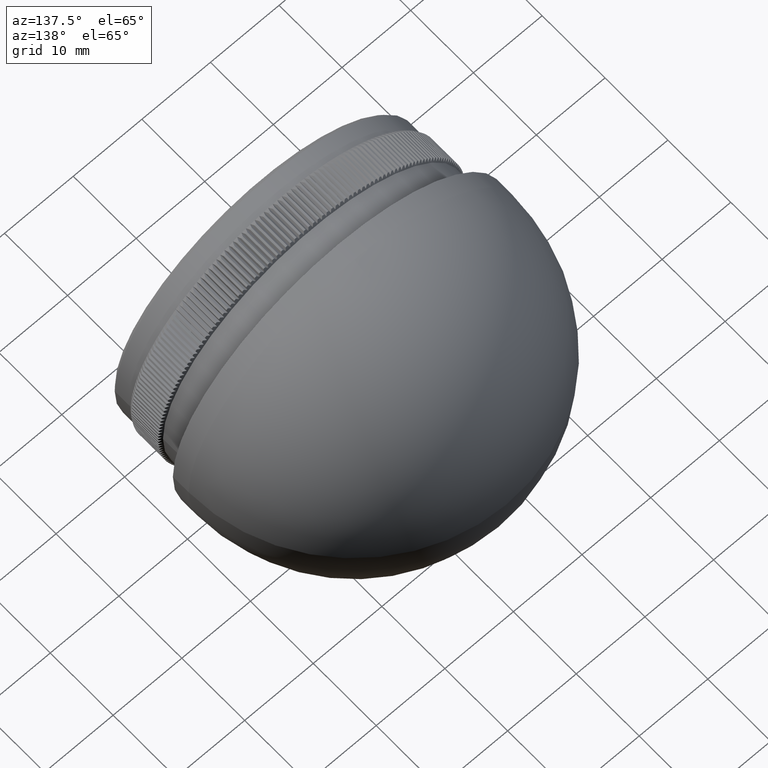
[diagram: clean part render]
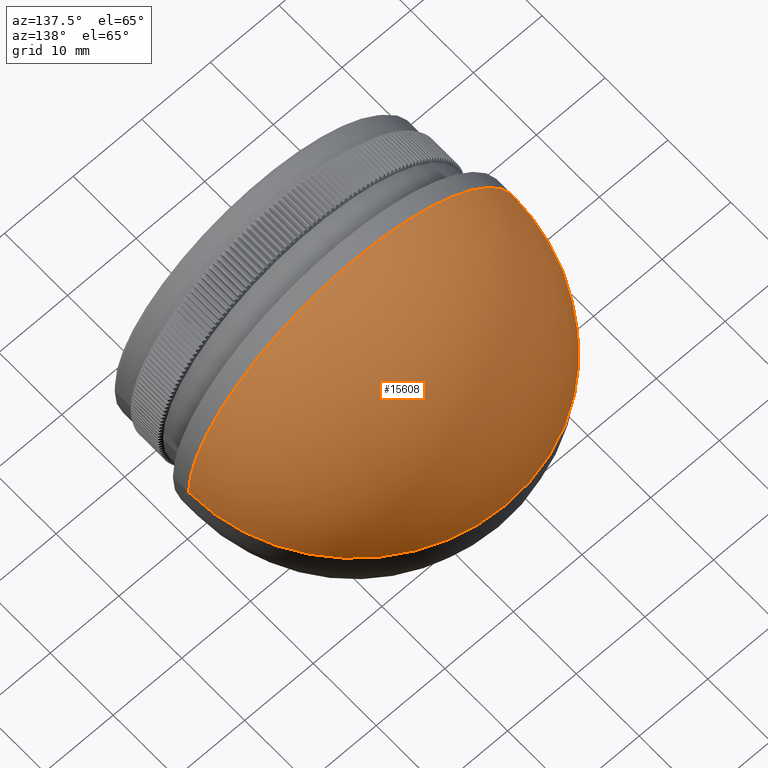
[diagram: same view with one face highlighted and labeled with its STEP entity id]
A machine part, auxiliary view. The second image highlights one B-rep face of the part: STEP entity #15608.
In plain terms, the highlighted spherical surface has radius 24.15 mm.
Its self-contained STEP definition (entity closure, byte-faithful):
#1273 = CARTESIAN_POINT ( 'NONE',  ( -1.800230794746609100E-015, 14.69999999999999900, 0.0000000000000000000 ) ) ;
#3146 = CARTESIAN_POINT ( 'NONE',  ( -2.840152988711739300E-014, 14.70000000000004000, 0.0000000000000000000 ) ) ;
#3322 = DIRECTION ( 'NONE',  ( 1.224646799147353200E-016, -1.700823602305442300E-031, 1.000000000000000000 ) ) ;
#3705 = VERTEX_POINT ( 'NONE', #29845 ) ;
#4812 = ORIENTED_EDGE ( 'NONE', *, *, #22342, .T. ) ;
#6245 = VERTEX_POINT ( 'NONE', #28163 ) ;
#6296 = DIRECTION ( 'NONE',  ( 1.000000000000000000, -1.364792796834754100E-015, 0.0000000000000000000 ) ) ;
#7072 = FACE_OUTER_BOUND ( 'NONE', #17902, .T. ) ;
#13316 = AXIS2_PLACEMENT_3D ( 'NONE', #3146, #25340, #6296 ) ;
#14000 = ORIENTED_EDGE ( 'NONE', *, *, #18165, .F. ) ;
#14968 = VERTEX_POINT ( 'NONE', #21139 ) ;
#15608 = ADVANCED_FACE ( 'NONE', ( #7072 ), #22854, .T. ) ;
#16348 = CIRCLE ( 'NONE', #13316, 24.15000000000001600 ) ;
#16551 = DIRECTION ( 'NONE',  ( -1.000000000000000000, 0.0000000000000000000, 0.0000000000000000000 ) ) ;
#17774 = CIRCLE ( 'NONE', #36275, 24.14999999999999100 ) ;
#17902 = EDGE_LOOP ( 'NONE', ( #14000, #4812, #19743 ) ) ;
#18165 = EDGE_CURVE ( 'NONE', #3705, #6245, #17774, .T. ) ;
#19743 = ORIENTED_EDGE ( 'NONE', *, *, #30291, .F. ) ;
#21139 = CARTESIAN_POINT ( 'NONE',  ( -24.15000000000002000, 14.70000000000007200, 2.957522019940860700E-015 ) ) ;
#21399 = AXIS2_PLACEMENT_3D ( 'NONE', #37374, #37675, #31173 ) ;
#22342 = EDGE_CURVE ( 'NONE', #3705, #14968, #25427, .T. ) ;
#22854 = SPHERICAL_SURFACE ( 'NONE', #21399, 24.14999999999999100 ) ;
#25340 = DIRECTION ( 'NONE',  ( -1.388827867340707400E-015, -1.000000000000000000, -0.0000000000000000000 ) ) ;
#25427 = CIRCLE ( 'NONE', #26105, 24.14999999999999100 ) ;
#26105 = AXIS2_PLACEMENT_3D ( 'NONE', #31957, #3322, #38174 ) ;
#28163 = CARTESIAN_POINT ( 'NONE',  ( 24.14999999999998800, 14.70000000000000600, 0.0000000000000000000 ) ) ;
#29845 = CARTESIAN_POINT ( 'NONE',  ( 3.321872321150188800E-014, 38.84999999999998700, 0.0000000000000000000 ) ) ;
#30291 = EDGE_CURVE ( 'NONE', #6245, #14968, #16348, .T. ) ;
#31173 = DIRECTION ( 'NONE',  ( 1.000000000000000000, -1.364792796834755500E-015, 0.0000000000000000000 ) ) ;
#31957 = CARTESIAN_POINT ( 'NONE',  ( -1.800230794746609100E-015, 14.69999999999999900, 0.0000000000000000000 ) ) ;
#35601 = DIRECTION ( 'NONE',  ( 0.0000000000000000000, 0.0000000000000000000, -1.000000000000000000 ) ) ;
#36275 = AXIS2_PLACEMENT_3D ( 'NONE', #1273, #35601, #16551 ) ;
#37374 = CARTESIAN_POINT ( 'NONE',  ( -1.800230794746609100E-015, 14.69999999999999900, 0.0000000000000000000 ) ) ;
#37675 = DIRECTION ( 'NONE',  ( -0.0000000000000000000, 0.0000000000000000000, 1.000000000000000000 ) ) ;
#38174 = DIRECTION ( 'NONE',  ( 1.000000000000000000, 0.0000000000000000000, -1.224646799147353200E-016 ) ) ;